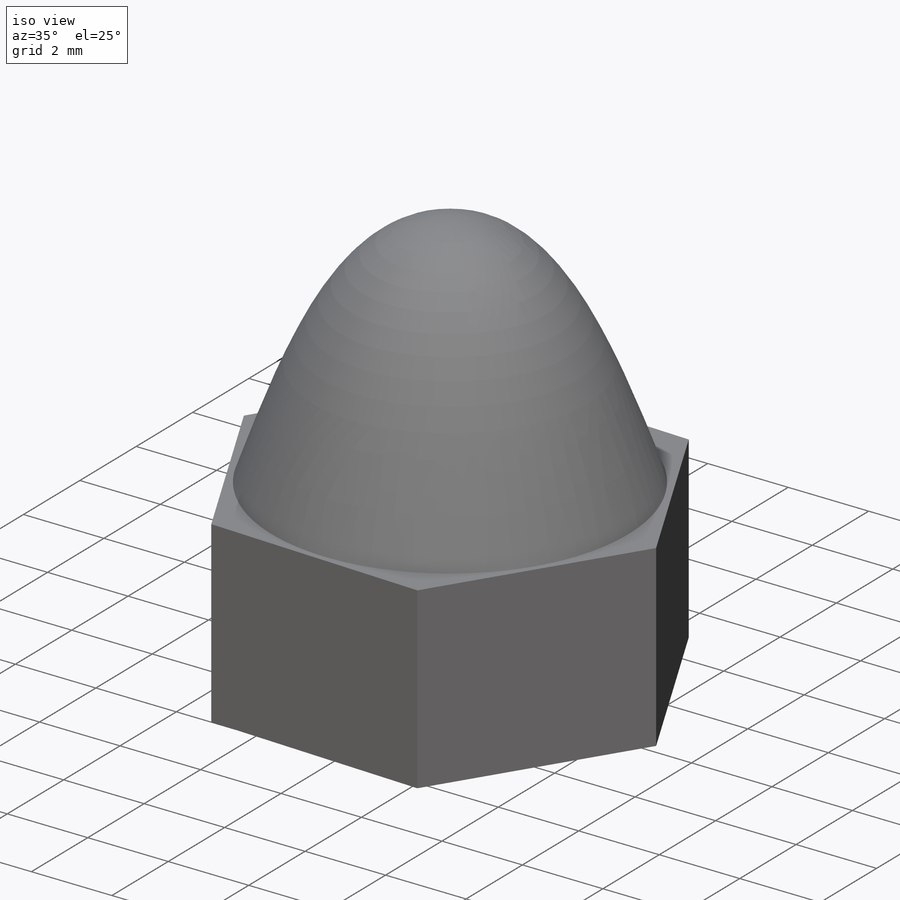
[diagram: iso view]
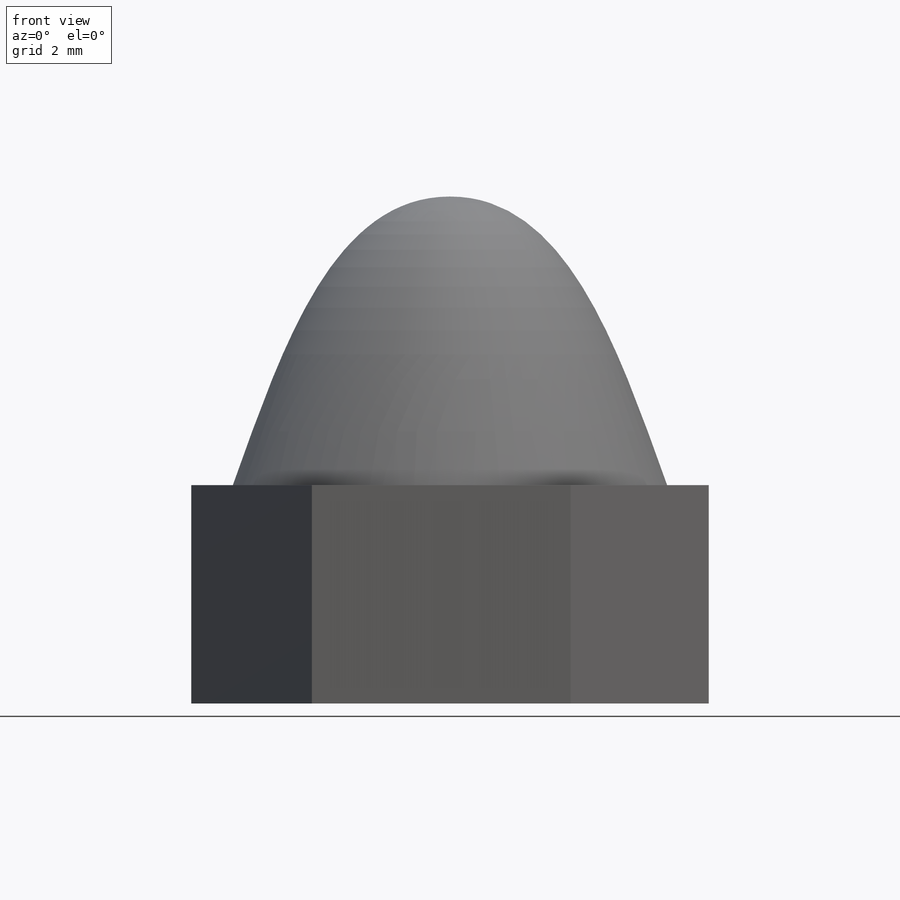
[diagram: front view]
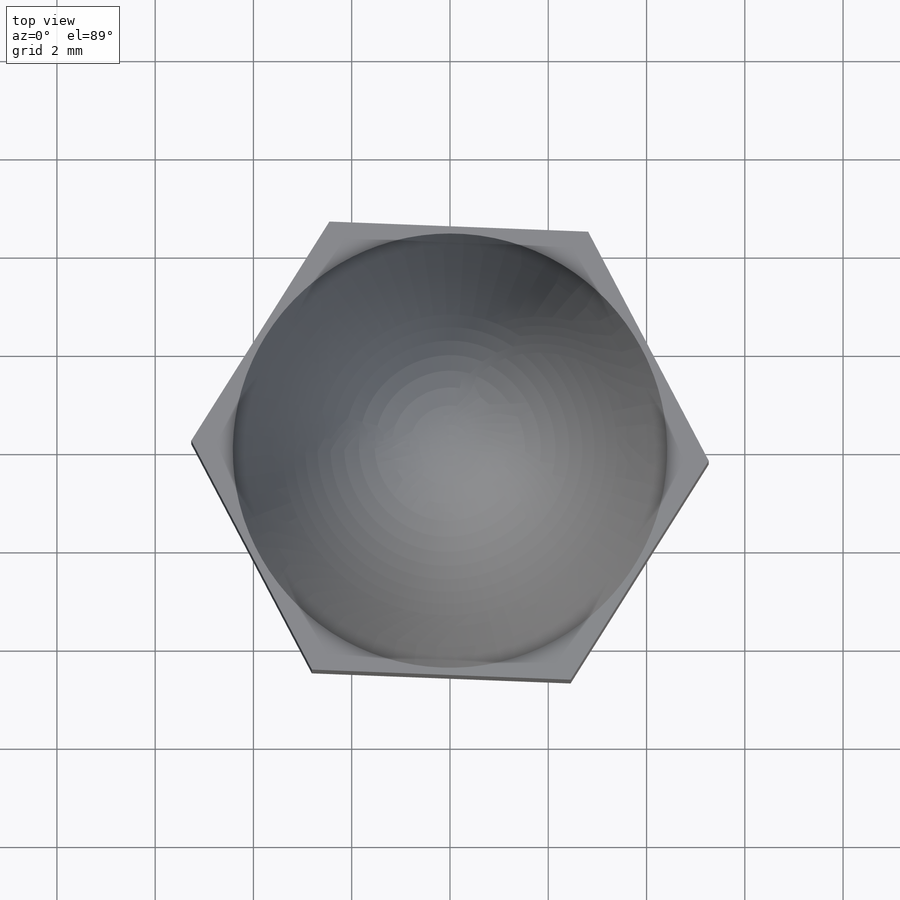
[diagram: top view]
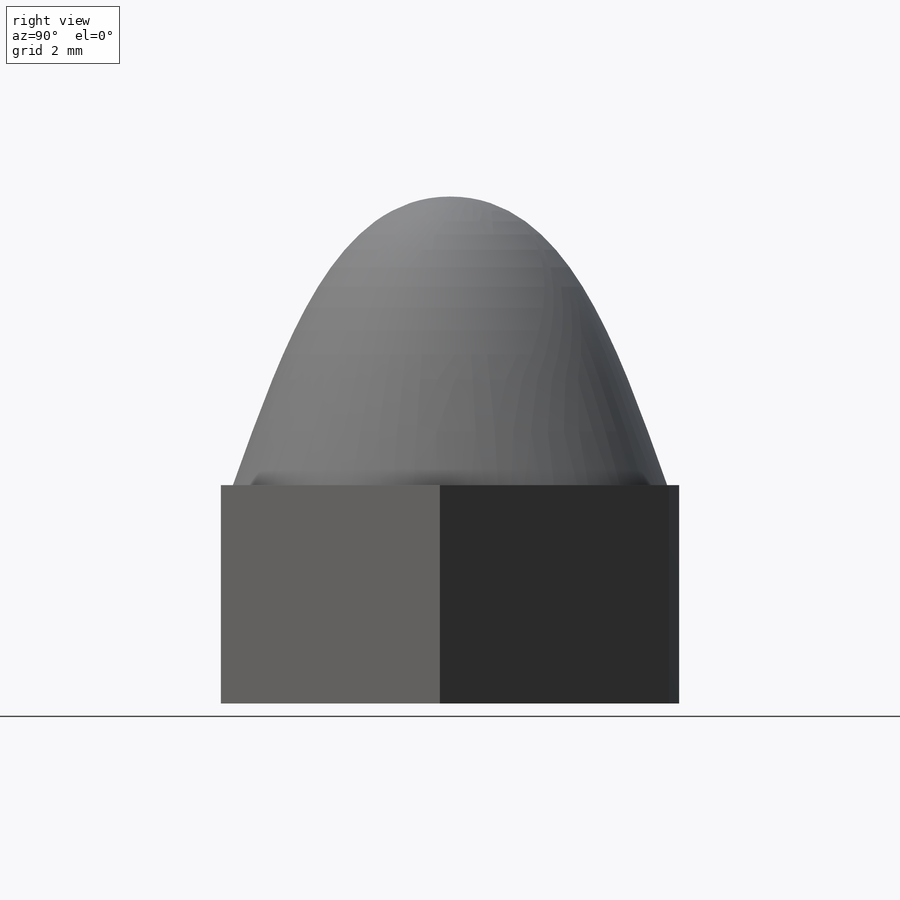
[diagram: right view]
SOLIDWORKS PART (.sldprt)
format: sldprt  version: not decoded by parser v0  size: 260,096 bytes
history: native  units: mm
features: sketch x5, material x1, extrude x1, plane x1, hole x1, thread x1 (+13 scaffold rows collapsed)
feature tree (23):
  scaffold x13  (default folders/planes/origin — collapsed)
  material  "Nylon 6/10"
  sketch  "Sketch1"  dims[D1=~9.128125mm]
  extrude  "Boss-Extrude1"  Depth=4.445mm
  sketch  "Sketch2"  dims[D1=8.8392mm]
  plane  "Plane1"  Offset=10.31875mm
  sketch  "Sketch3"
  hole  "#10-32 Tapped Hole1"  Diameter=4.0386mm Depth=7.874mm
  sketch  "Sketch5"
  sketch  "Sketch4"  dims[hole-wizard template sketch: 47 standard entries collapsed; hole parameters kept: c15.Tap Drill Depth=7.874mm c15.D3=~14.816244mm c15.Drill Angle=118.0deg]
  thread  "Hole Thread1"  Diameter=7.874mm  [1 undecoded]
decode coverage: 6 of 8 modeling features carry decoded parameters
note: ~ marks probable driven/reference dimensions
note: 1 parameter value undecoded
note: suppression state not decoded; provenance and decode notes live in map.json
